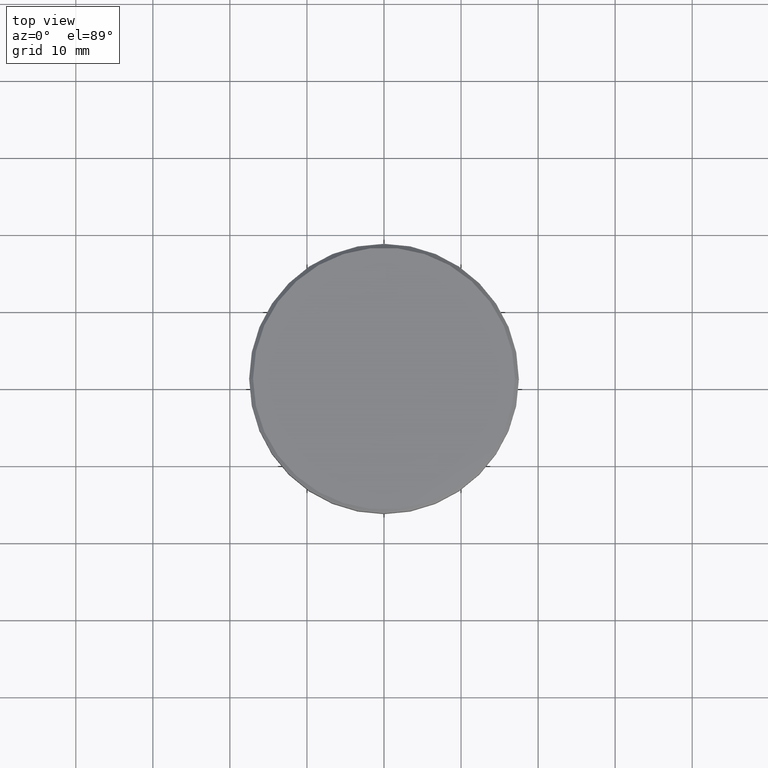
[diagram: clean part render]
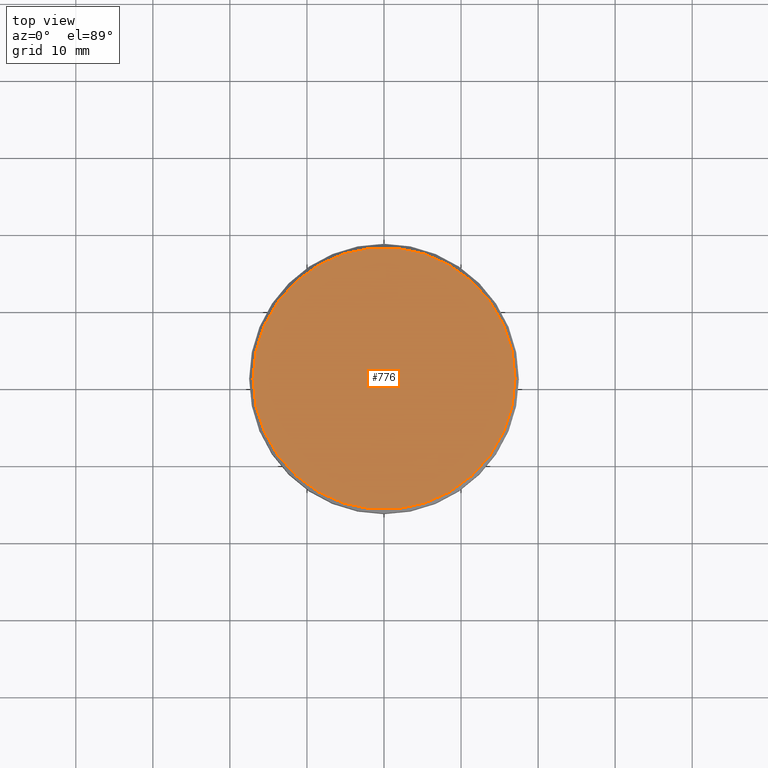
[diagram: same view with one face highlighted and labeled with its STEP entity id]
A machine part, top view. The second image highlights one B-rep face of the part: STEP entity #776.
In plain terms, the highlighted planar face has unit normal (0, -0, 1).
Its self-contained STEP definition (entity closure, byte-faithful):
#10 = AXIS2_PLACEMENT_3D ( 'NONE', #1141, #961, #143 ) ;
#100 = CIRCLE ( 'NONE', #1054, 17.00000000000002842 ) ;
#143 = DIRECTION ( 'NONE',  ( 1.000000000000000000, 0.000000000000000000, 0.000000000000000000 ) ) ;
#144 = DIRECTION ( 'NONE',  ( 1.000000000000000000, 0.000000000000000000, 0.000000000000000000 ) ) ;
#160 = DIRECTION ( 'NONE',  ( -0.000000000000000000, -0.000000000000000000, 1.000000000000000000 ) ) ;
#202 = CARTESIAN_POINT ( 'NONE',  ( -17.00000000000002842, 0.000000000000000000, 0.000000000000000000 ) ) ;
#245 = CARTESIAN_POINT ( 'NONE',  ( 0.000000000000000000, 0.000000000000000000, 0.000000000000000000 ) ) ;
#333 = CARTESIAN_POINT ( 'NONE',  ( 0.000000000000000000, 0.000000000000000000, 0.000000000000000000 ) ) ;
#336 = EDGE_CURVE ( 'NONE', #350, #604, #1172, .T. ) ;
#350 = VERTEX_POINT ( 'NONE', #793 ) ;
#356 = AXIS2_PLACEMENT_3D ( 'NONE', #245, #160, #144 ) ;
#435 = EDGE_CURVE ( 'NONE', #604, #350, #100, .T. ) ;
#509 = DIRECTION ( 'NONE',  ( 1.000000000000000000, 0.000000000000000000, 0.000000000000000000 ) ) ;
#604 = VERTEX_POINT ( 'NONE', #202 ) ;
#776 = ADVANCED_FACE ( 'NONE', ( #777 ), #1146, .T. ) ;
#777 = FACE_OUTER_BOUND ( 'NONE', #798, .T. ) ;
#793 = CARTESIAN_POINT ( 'NONE',  ( 17.00000000000002842, 2.112515728529186039E-15, 0.000000000000000000 ) ) ;
#798 = EDGE_LOOP ( 'NONE', ( #914, #1173 ) ) ;
#914 = ORIENTED_EDGE ( 'NONE', *, *, #435, .T. ) ;
#961 = DIRECTION ( 'NONE',  ( 0.000000000000000000, -0.000000000000000000, 1.000000000000000000 ) ) ;
#962 = DIRECTION ( 'NONE',  ( -0.000000000000000000, -0.000000000000000000, 1.000000000000000000 ) ) ;
#1054 = AXIS2_PLACEMENT_3D ( 'NONE', #333, #962, #509 ) ;
#1141 = CARTESIAN_POINT ( 'NONE',  ( 0.000000000000000000, 0.000000000000000000, 0.000000000000000000 ) ) ;
#1146 = PLANE ( 'NONE',  #10 ) ;
#1172 = CIRCLE ( 'NONE', #356, 17.00000000000002842 ) ;
#1173 = ORIENTED_EDGE ( 'NONE', *, *, #336, .T. ) ;